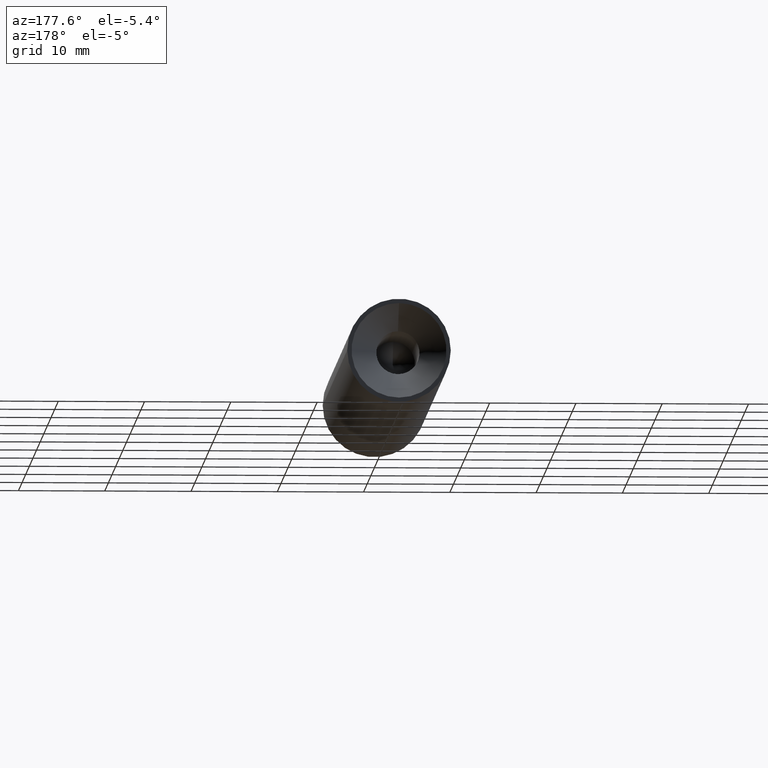
[diagram: clean part render]
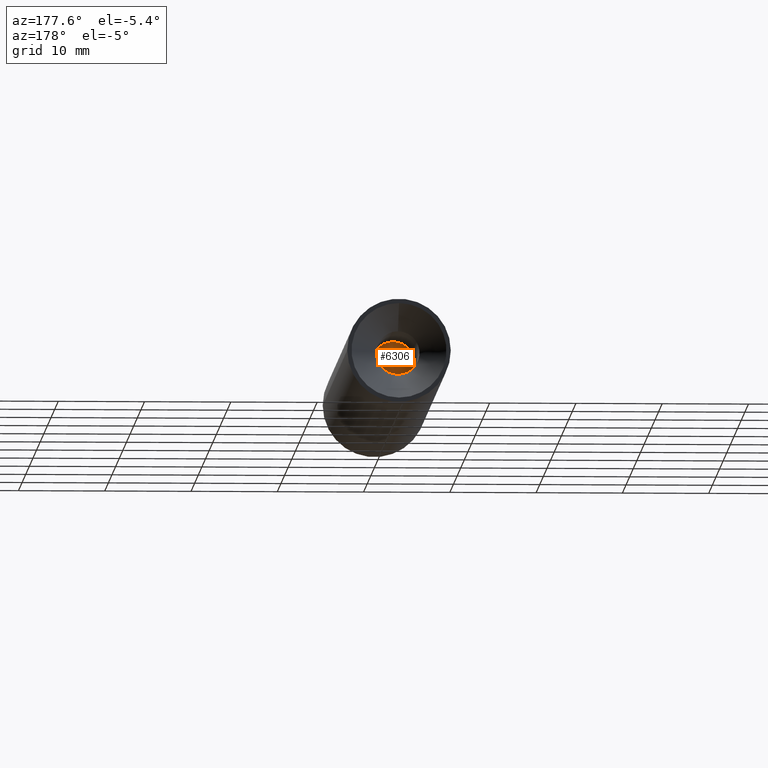
[diagram: same view with one face highlighted and labeled with its STEP entity id]
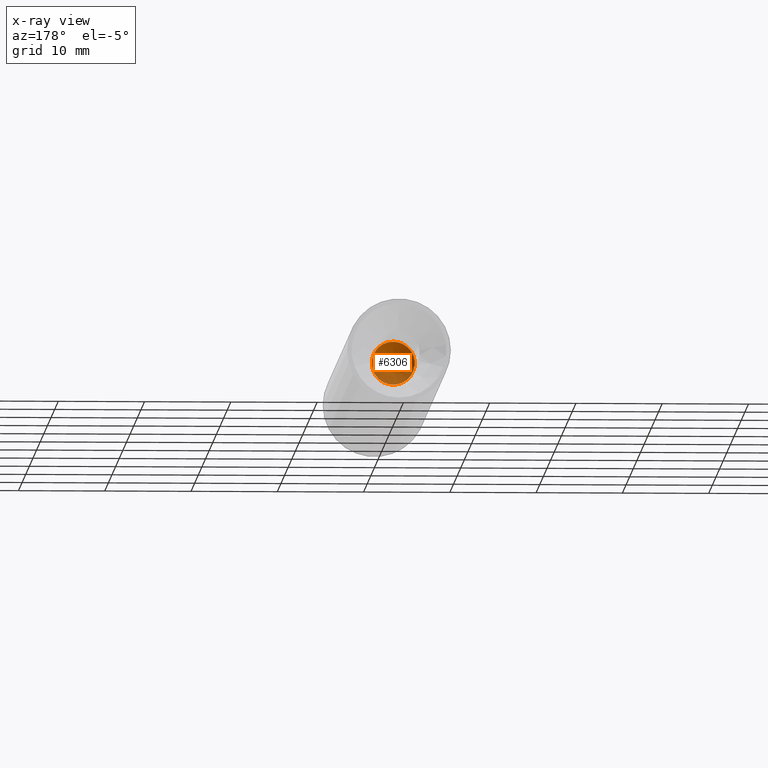
[diagram: x-ray of the same camera — body ghosted, the highlighted face saturated]
A machine part, auxiliary view. The second image highlights one B-rep face of the part: STEP entity #6306.
The next image is the same camera in x-ray: the body ghosted, the highlighted face saturated — about 34% of this face is hidden behind the body in this view.
In plain terms, the highlighted conical surface has half-angle 59 deg.
Its self-contained STEP definition (entity closure, byte-faithful):
#169 = ORIENTED_EDGE ( 'NONE', *, *, #4404, .T. ) ;
#1850 = FACE_OUTER_BOUND ( 'NONE', #13471, .T. ) ;
#2256 = DIRECTION ( 'NONE',  ( 0.000000000000000000, 0.000000000000000000, 1.000000000000000000 ) ) ;
#2338 = CONICAL_SURFACE ( 'NONE', #4298, 2.499999999999995559, 1.029744258676653201 ) ;
#3413 = CARTESIAN_POINT ( 'NONE',  ( -1.577870315883518554E-31, 52.00000000000000711, 0.000000000000000000 ) ) ;
#4298 = AXIS2_PLACEMENT_3D ( 'NONE', #5485, #11766, #2256 ) ;
#4404 = EDGE_CURVE ( 'NONE', #9898, #9898, #13134, .T. ) ;
#5485 = CARTESIAN_POINT ( 'NONE',  ( -1.577870315883518554E-31, 52.00000000000000711, 0.000000000000000000 ) ) ;
#5522 = DIRECTION ( 'NONE',  ( 0.000000000000000000, 0.000000000000000000, 1.000000000000000000 ) ) ;
#6306 = ADVANCED_FACE ( 'NONE', ( #1850 ), #2338, .F. ) ;
#7581 = DIRECTION ( 'NONE',  ( -0.000000000000000000, 1.000000000000000000, -0.000000000000000000 ) ) ;
#8875 = AXIS2_PLACEMENT_3D ( 'NONE', #3413, #7581, #5522 ) ;
#9614 = CARTESIAN_POINT ( 'NONE',  ( -1.577870315883518554E-31, 52.00000000000000711, 2.499999999999995559 ) ) ;
#9898 = VERTEX_POINT ( 'NONE', #9614 ) ;
#11766 = DIRECTION ( 'NONE',  ( -0.000000000000000000, 1.000000000000000000, -0.000000000000000000 ) ) ;
#13134 = CIRCLE ( 'NONE', #8875, 2.499999999999995559 ) ;
#13471 = EDGE_LOOP ( 'NONE', ( #169 ) ) ;